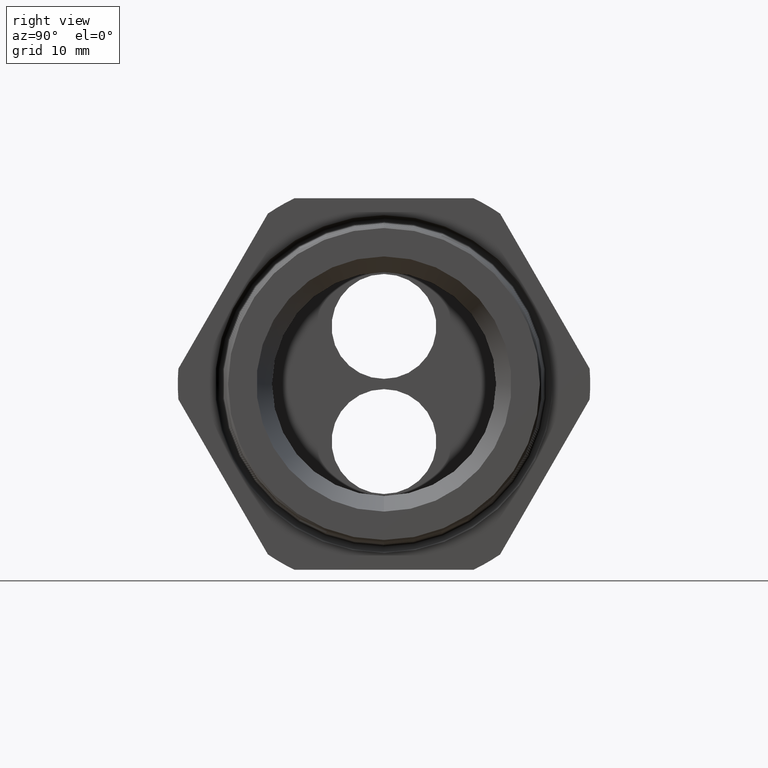
[diagram: clean part render]
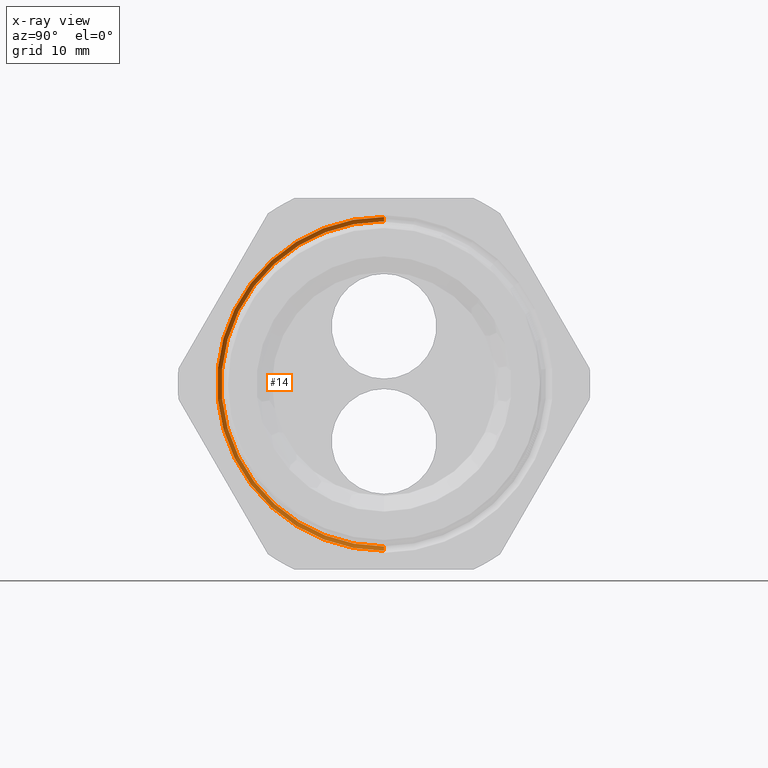
[diagram: x-ray — body ghosted, one internal face saturated and labeled with its STEP entity id]
A machine part, right view, then the same camera in x-ray: the body is ghosted and one INTERNAL B-rep face — a face not visible from any outside direction — is saturated and labeled: STEP entity #14.
In plain terms, the highlighted conical surface has half-angle 58 deg.
Its self-contained STEP definition (entity closure, byte-faithful):
#6 = ORIENTED_EDGE ( 'NONE', *, *, #1874, .T. ) ;
#8 = ORIENTED_EDGE ( 'NONE', *, *, #6357, .T. ) ;
#10 = ORIENTED_EDGE ( 'NONE', *, *, #953, .F. ) ;
#11 = ORIENTED_EDGE ( 'NONE', *, *, #1837, .F. ) ;
#14 = ADVANCED_FACE ( 'NONE', ( #474 ), #473, .T. ) ;
#468 = DIRECTION ( 'NONE',  ( 0.0000000000000000000, 0.0000000000000000000, -1.000000000000000000 ) ) ;
#469 = DIRECTION ( 'NONE',  ( 1.000000000000000000, 0.0000000000000000000, 0.0000000000000000000 ) ) ;
#470 = CARTESIAN_POINT ( 'NONE',  ( -1.005250323342433900, 0.0000000000000000000, 0.0000000000000000000 ) ) ;
#471 = AXIS2_PLACEMENT_3D ( 'NONE', #470, #469, #468 ) ;
#473 = CONICAL_SURFACE ( 'NONE', #471, 0.9145114984791282700, 1.012290966156737400 ) ;
#474 = FACE_OUTER_BOUND ( 'NONE', #6306, .T. ) ;
#953 = EDGE_CURVE ( 'NONE', #1808, #1877, #3005, .T. ) ;
#1808 = VERTEX_POINT ( 'NONE', #4511 ) ;
#1837 = EDGE_CURVE ( 'NONE', #1840, #1808, #4592, .T. ) ;
#1840 = VERTEX_POINT ( 'NONE', #4582 ) ;
#1841 = VERTEX_POINT ( 'NONE', #4581 ) ;
#1874 = EDGE_CURVE ( 'NONE', #1841, #1877, #4639, .T. ) ;
#1877 = VERTEX_POINT ( 'NONE', #4635 ) ;
#3001 = DIRECTION ( 'NONE',  ( 0.0000000000000000000, 0.0000000000000000000, -1.000000000000000000 ) ) ;
#3002 = DIRECTION ( 'NONE',  ( 1.000000000000000000, 0.0000000000000000000, 0.0000000000000000000 ) ) ;
#3003 = CARTESIAN_POINT ( 'NONE',  ( -0.9899528718497443400, 0.0000000000000000000, 0.0000000000000000000 ) ) ;
#3004 = AXIS2_PLACEMENT_3D ( 'NONE', #3003, #3002, #3001 ) ;
#3005 = CIRCLE ( 'NONE', #3004, 0.9389925383092112600 ) ;
#4511 = CARTESIAN_POINT ( 'NONE',  ( -0.9899528718497443400, 0.0000000000000000000, 0.9389925383092117000 ) ) ;
#4581 = CARTESIAN_POINT ( 'NONE',  ( -1.005250323342433900, 1.135560785297213200E-016, -0.9145114984791282700 ) ) ;
#4582 = CARTESIAN_POINT ( 'NONE',  ( -1.005250323342433900, 0.0000000000000000000, 0.9145114984791282700 ) ) ;
#4589 = DIRECTION ( 'NONE',  ( 0.5299192642331827000, 1.038559386480990700E-016, 0.8480480961564398300 ) ) ;
#4590 = VECTOR ( 'NONE', #4589, 39.37007874015748100 ) ;
#4591 = CARTESIAN_POINT ( 'NONE',  ( -1.005250323342433900, 1.119953579395914000E-016, 0.9145114984791282700 ) ) ;
#4592 = LINE ( 'NONE', #4591, #4590 ) ;
#4635 = CARTESIAN_POINT ( 'NONE',  ( -0.9899528718497443400, 1.149934206463624500E-016, -0.9389925383092117000 ) ) ;
#4636 = DIRECTION ( 'NONE',  ( 0.5299192642331827000, 0.0000000000000000000, -0.8480480961564398300 ) ) ;
#4637 = VECTOR ( 'NONE', #4636, 39.37007874015748100 ) ;
#4638 = CARTESIAN_POINT ( 'NONE',  ( -1.005250323342433900, 0.0000000000000000000, -0.9145114984791282700 ) ) ;
#4639 = LINE ( 'NONE', #4638, #4637 ) ;
#5738 = DIRECTION ( 'NONE',  ( 0.0000000000000000000, 0.0000000000000000000, -1.000000000000000000 ) ) ;
#5739 = DIRECTION ( 'NONE',  ( 1.000000000000000000, 0.0000000000000000000, 0.0000000000000000000 ) ) ;
#5740 = AXIS2_PLACEMENT_3D ( 'NONE', #5746, #5739, #5738 ) ;
#5741 = CIRCLE ( 'NONE', #5740, 0.9145114984791282700 ) ;
#5746 = CARTESIAN_POINT ( 'NONE',  ( -1.005250323342433900, 0.0000000000000000000, 0.0000000000000000000 ) ) ;
#6306 = EDGE_LOOP ( 'NONE', ( #11, #8, #6, #10 ) ) ;
#6357 = EDGE_CURVE ( 'NONE', #1840, #1841, #5741, .T. ) ;